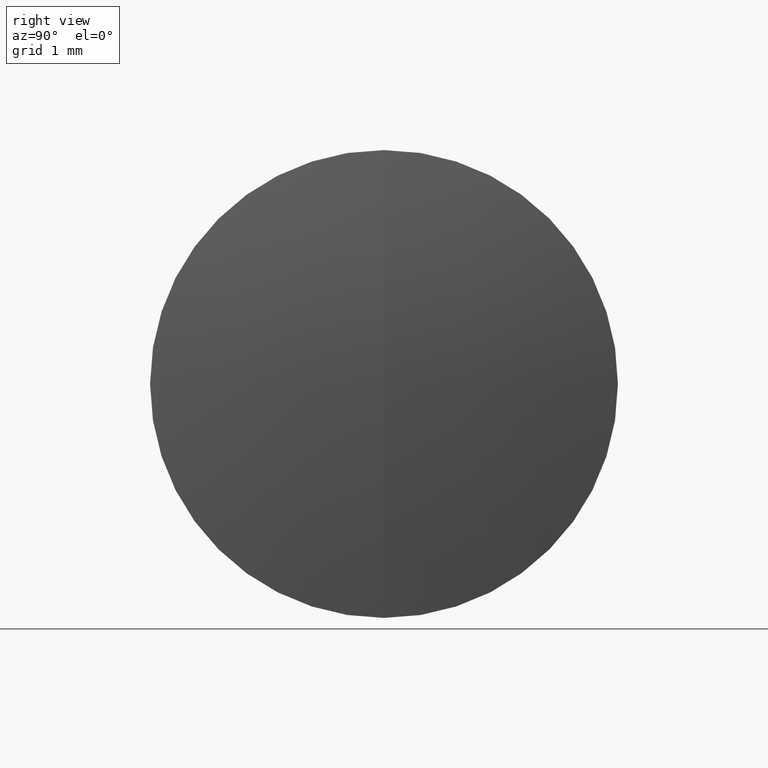
[diagram: clean part render]
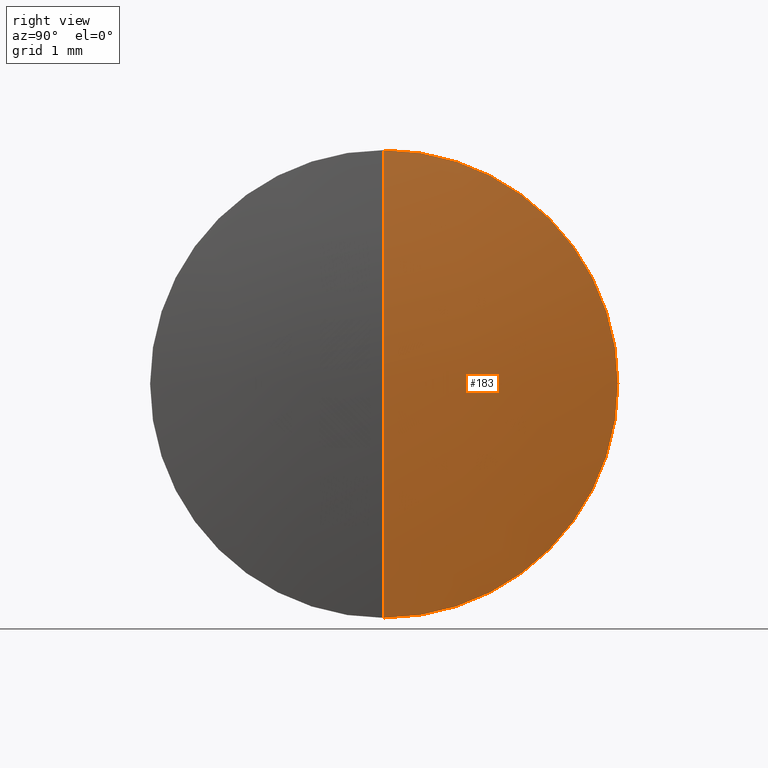
[diagram: same view with one face highlighted and labeled with its STEP entity id]
A machine part, right view. The second image highlights one B-rep face of the part: STEP entity #183.
In plain terms, the highlighted spherical surface has radius 19.6 mm.
Its self-contained STEP definition (entity closure, byte-faithful):
#53 = CARTESIAN_POINT ( 'NONE',  ( -14.10556508440408200, 0.0000000000000000000, 0.0000000000000000000 ) ) ;
#97 = ORIENTED_EDGE ( 'NONE', *, *, #138, .F. ) ;
#117 = AXIS2_PLACEMENT_3D ( 'NONE', #307, #299, #286 ) ;
#120 = EDGE_LOOP ( 'NONE', ( #97, #320, #270 ) ) ;
#124 = DIRECTION ( 'NONE',  ( -0.0000000000000000000, 1.000000000000000000, 1.224646799147353200E-016 ) ) ;
#125 = CARTESIAN_POINT ( 'NONE',  ( -14.10556508440408200, 0.0000000000000000000, 0.0000000000000000000 ) ) ;
#131 = VERTEX_POINT ( 'NONE', #262 ) ;
#133 = DIRECTION ( 'NONE',  ( 0.0000000000000000000, -1.000000000000000000, 0.0000000000000000000 ) ) ;
#138 = EDGE_CURVE ( 'NONE', #300, #200, #250, .T. ) ;
#153 = DIRECTION ( 'NONE',  ( 0.0000000000000000000, 1.000000000000000000, 0.0000000000000000000 ) ) ;
#155 = CIRCLE ( 'NONE', #117, 2.999999999999997800 ) ;
#173 = AXIS2_PLACEMENT_3D ( 'NONE', #125, #153, #234 ) ;
#178 = CIRCLE ( 'NONE', #271, 19.60000000000000100 ) ;
#183 = ADVANCED_FACE ( 'NONE', ( #225 ), #326, .T. ) ;
#184 = DIRECTION ( 'NONE',  ( 0.0000000000000000000, -1.224646799147353200E-016, 1.000000000000000000 ) ) ;
#188 = DIRECTION ( 'NONE',  ( 0.0000000000000000000, 0.0000000000000000000, -1.000000000000000000 ) ) ;
#191 = CARTESIAN_POINT ( 'NONE',  ( 5.494434915595920000, 0.0000000000000000000, 1.200153863164406300E-015 ) ) ;
#200 = VERTEX_POINT ( 'NONE', #322 ) ;
#220 = EDGE_CURVE ( 'NONE', #200, #131, #155, .T. ) ;
#225 = FACE_OUTER_BOUND ( 'NONE', #120, .T. ) ;
#234 = DIRECTION ( 'NONE',  ( 0.0000000000000000000, 0.0000000000000000000, 1.000000000000000000 ) ) ;
#250 = CIRCLE ( 'NONE', #255, 19.60000000000000100 ) ;
#255 = AXIS2_PLACEMENT_3D ( 'NONE', #280, #133, #188 ) ;
#262 = CARTESIAN_POINT ( 'NONE',  ( 5.263482388303502000, 3.673940397442057400E-016, -2.999999999999997800 ) ) ;
#270 = ORIENTED_EDGE ( 'NONE', *, *, #220, .F. ) ;
#271 = AXIS2_PLACEMENT_3D ( 'NONE', #53, #124, #184 ) ;
#280 = CARTESIAN_POINT ( 'NONE',  ( -14.10556508440408200, 0.0000000000000000000, 0.0000000000000000000 ) ) ;
#286 = DIRECTION ( 'NONE',  ( 0.0000000000000000000, 0.0000000000000000000, 1.000000000000000000 ) ) ;
#287 = EDGE_CURVE ( 'NONE', #300, #131, #178, .T. ) ;
#299 = DIRECTION ( 'NONE',  ( -1.000000000000000000, -0.0000000000000000000, -0.0000000000000000000 ) ) ;
#300 = VERTEX_POINT ( 'NONE', #191 ) ;
#307 = CARTESIAN_POINT ( 'NONE',  ( 5.263482388303502000, 0.0000000000000000000, 0.0000000000000000000 ) ) ;
#320 = ORIENTED_EDGE ( 'NONE', *, *, #287, .T. ) ;
#322 = CARTESIAN_POINT ( 'NONE',  ( 5.263482388303502000, 0.0000000000000000000, 2.999999999999997800 ) ) ;
#326 = SPHERICAL_SURFACE ( 'NONE', #173, 19.60000000000000100 ) ;